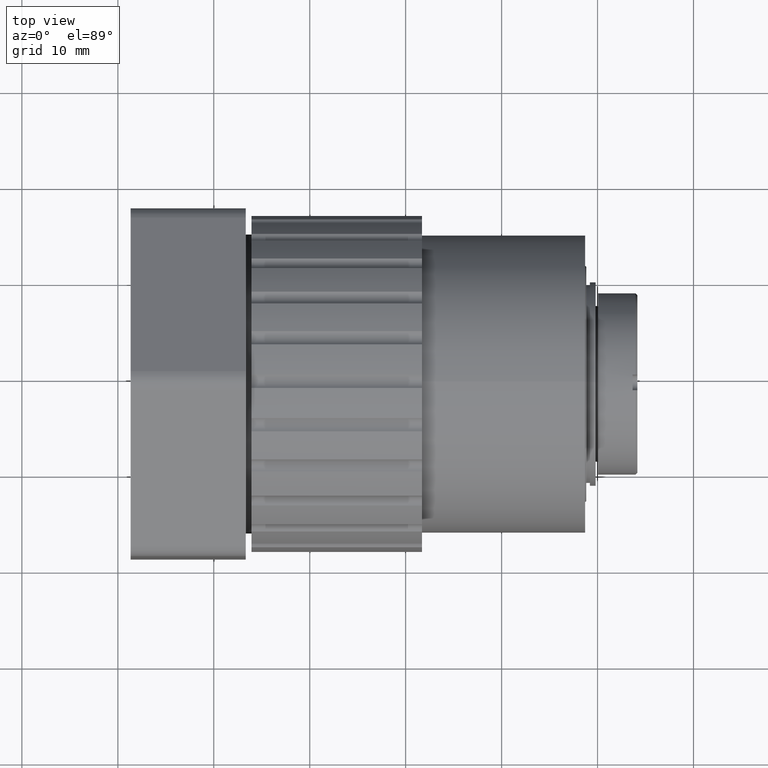
[diagram: clean part render]
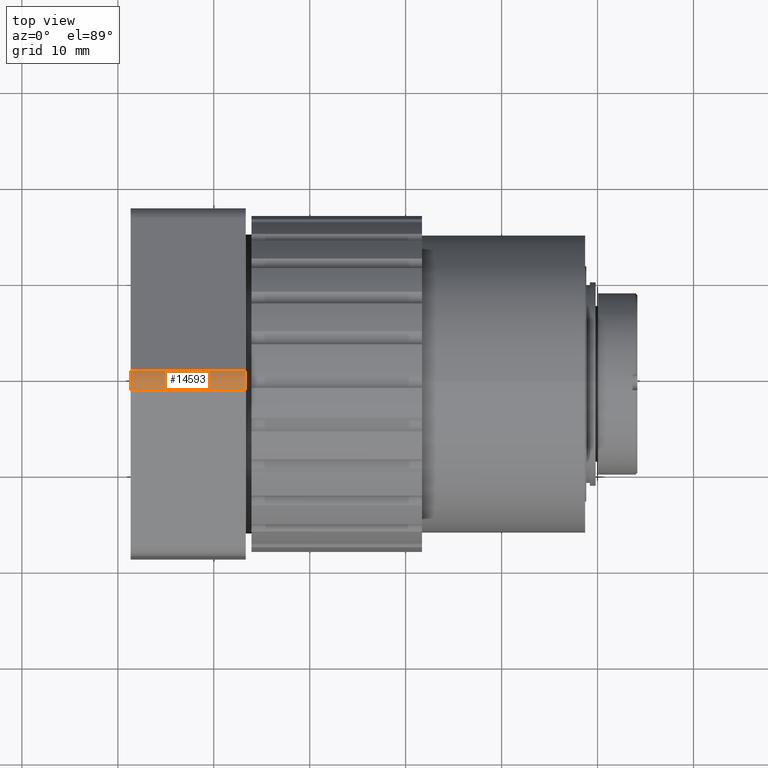
[diagram: same view with one face highlighted and labeled with its STEP entity id]
A machine part, top view. The second image highlights one B-rep face of the part: STEP entity #14593.
In plain terms, the highlighted cylindrical surface (edge-blend (fillet) strip) has radius 2 mm, axis along (-1, 0, 0).
Its self-contained STEP definition (entity closure, byte-faithful):
#1156 = CARTESIAN_POINT ( 'NONE',  ( 38.77989565996298182, -0.6558685446034218103, 18.64841369471655597 ) ) ;
#1210 = EDGE_CURVE ( 'NONE', #5228, #9840, #3922, .T. ) ;
#1629 = LINE ( 'NONE', #4932, #8447 ) ;
#1827 = DIRECTION ( 'NONE',  ( 1.000000000000000000, 0.000000000000000000, -0.000000000000000000 ) ) ;
#2667 = CARTESIAN_POINT ( 'NONE',  ( -28.67293126141579052, -1.655868544604643944, 20.38046450228566542 ) ) ;
#3300 = DIRECTION ( 'NONE',  ( 0.000000000000000000, 0.000000000000000000, 1.000000000000000000 ) ) ;
#3532 = CARTESIAN_POINT ( 'NONE',  ( -28.67293126141579052, -0.6558685446034218103, 18.64841369471655597 ) ) ;
#3536 = ORIENTED_EDGE ( 'NONE', *, *, #4178, .T. ) ;
#3922 = LINE ( 'NONE', #14490, #8983 ) ;
#4096 = EDGE_LOOP ( 'NONE', ( #3536, #4292, #10062, #12558 ) ) ;
#4178 = EDGE_CURVE ( 'NONE', #5228, #8954, #7286, .T. ) ;
#4292 = ORIENTED_EDGE ( 'NONE', *, *, #7471, .F. ) ;
#4758 = DIRECTION ( 'NONE',  ( 0.000000000000000000, 0.000000000000000000, 1.000000000000000000 ) ) ;
#4932 = CARTESIAN_POINT ( 'NONE',  ( 38.77989565996298182, -1.655868544604643944, 20.38046450228540607 ) ) ;
#5228 = VERTEX_POINT ( 'NONE', #11392 ) ;
#5626 = DIRECTION ( 'NONE',  ( 1.000000000000000000, -0.000000000000000000, -0.000000000000000000 ) ) ;
#5722 = DIRECTION ( 'NONE',  ( -1.000000000000000000, 0.000000000000000000, 0.000000000000000000 ) ) ;
#6353 = AXIS2_PLACEMENT_3D ( 'NONE', #1156, #5722, #4758 ) ;
#7132 = CIRCLE ( 'NONE', #13824, 2.000000000000001776 ) ;
#7286 = CIRCLE ( 'NONE', #13032, 2.000000000000001776 ) ;
#7298 = CARTESIAN_POINT ( 'NONE',  ( -16.66927024871700524, 0.3441314553960239664, 20.38046450228533857 ) ) ;
#7471 = EDGE_CURVE ( 'NONE', #13384, #8954, #1629, .T. ) ;
#8268 = CYLINDRICAL_SURFACE ( 'NONE', #6353, 2.000000000000001776 ) ;
#8447 = VECTOR ( 'NONE', #9494, 1000.000000000000000 ) ;
#8511 = CARTESIAN_POINT ( 'NONE',  ( -16.66927024871700524, -0.6558685446034218103, 18.64841369471655597 ) ) ;
#8950 = DIRECTION ( 'NONE',  ( -1.000000000000000000, 0.000000000000000000, 0.000000000000000000 ) ) ;
#8954 = VERTEX_POINT ( 'NONE', #2667 ) ;
#8983 = VECTOR ( 'NONE', #1827, 1000.000000000000000 ) ;
#9464 = FACE_OUTER_BOUND ( 'NONE', #4096, .T. ) ;
#9494 = DIRECTION ( 'NONE',  ( -1.000000000000000000, -0.000000000000000000, -0.000000000000000000 ) ) ;
#9840 = VERTEX_POINT ( 'NONE', #7298 ) ;
#10062 = ORIENTED_EDGE ( 'NONE', *, *, #10753, .T. ) ;
#10753 = EDGE_CURVE ( 'NONE', #13384, #9840, #7132, .T. ) ;
#11392 = CARTESIAN_POINT ( 'NONE',  ( -28.67293126141579052, 0.3441314553960239664, 20.38046450228534567 ) ) ;
#11503 = CARTESIAN_POINT ( 'NONE',  ( -16.66927024871700524, -1.655868544604643944, 20.38046450228563344 ) ) ;
#12558 = ORIENTED_EDGE ( 'NONE', *, *, #1210, .F. ) ;
#13032 = AXIS2_PLACEMENT_3D ( 'NONE', #3532, #5626, #3300 ) ;
#13384 = VERTEX_POINT ( 'NONE', #11503 ) ;
#13824 = AXIS2_PLACEMENT_3D ( 'NONE', #8511, #8950, #14655 ) ;
#14490 = CARTESIAN_POINT ( 'NONE',  ( 38.77989565996298182, 0.3441314553960239664, 20.38046450228545581 ) ) ;
#14593 = ADVANCED_FACE ( 'NONE', ( #9464 ), #8268, .T. ) ;
#14655 = DIRECTION ( 'NONE',  ( 0.000000000000000000, 0.000000000000000000, 1.000000000000000000 ) ) ;